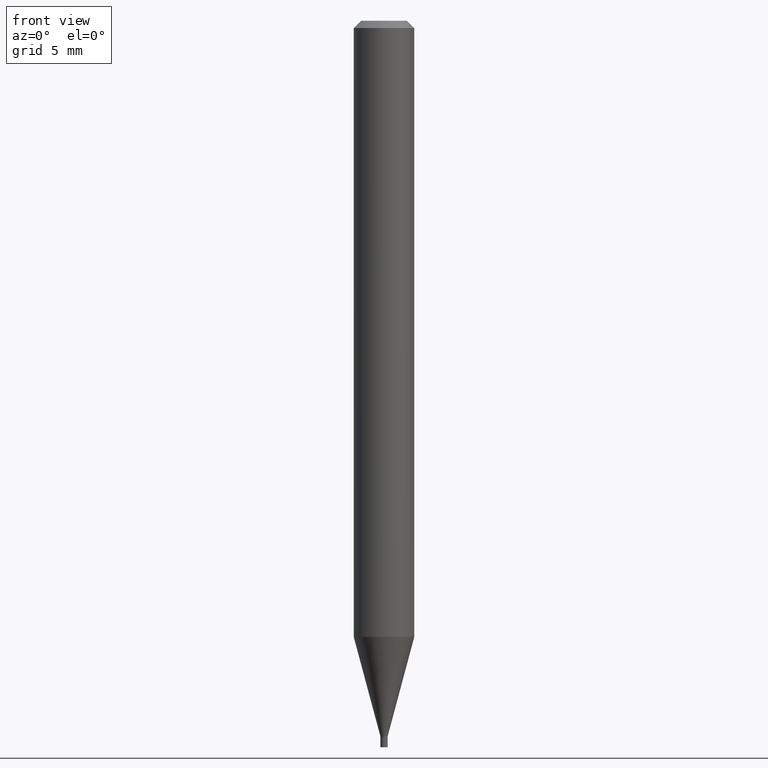
[diagram: clean part render]
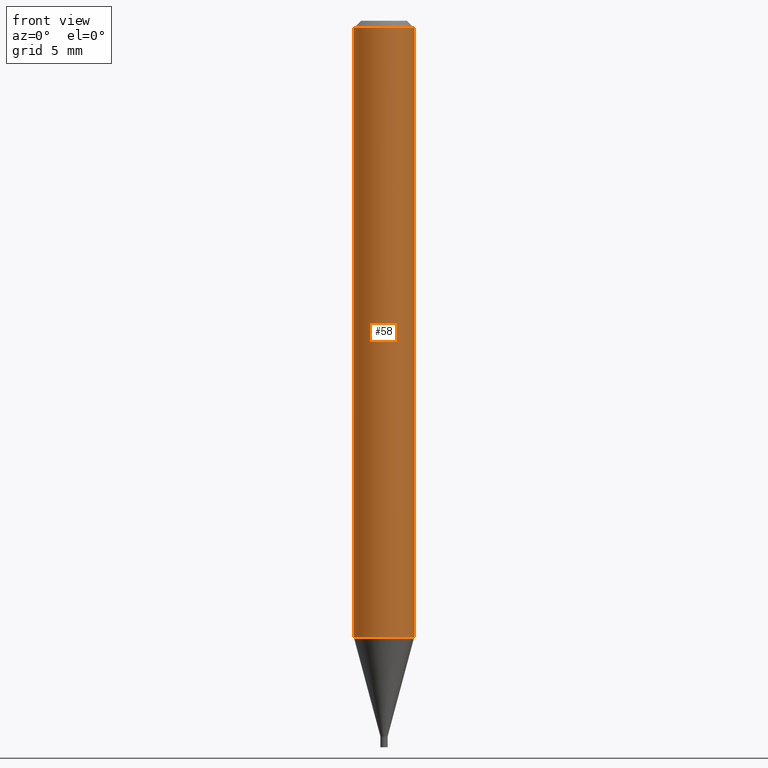
[diagram: same view with one face highlighted and labeled with its STEP entity id]
A machine part, front view. The second image highlights one B-rep face of the part: STEP entity #58.
In plain terms, the highlighted cylindrical surface (edge-blend (fillet) strip) has radius 1.5875 mm, axis along (-0, 0, 1).
Its self-contained STEP definition (entity closure, byte-faithful):
#5 = VECTOR ( 'NONE', #232, 39.37007874015748143 ) ;
#9 = CARTESIAN_POINT ( 'NONE',  ( 0.000000000000000000, 0.000000000000000000, 0.000000000000000000 ) ) ;
#20 = CIRCLE ( 'NONE', #407, 0.06250000000000000000 ) ;
#26 = CARTESIAN_POINT ( 'NONE',  ( 0.06250000000000001388, -4.878427629232878036E-15, -1.272237205583713893 ) ) ;
#30 = ORIENTED_EDGE ( 'NONE', *, *, #331, .F. ) ;
#51 = DIRECTION ( 'NONE',  ( 1.000000000000000000, -6.982962677686266711E-15, 4.876176775795935793E-29 ) ) ;
#58 = ADVANCED_FACE ( 'NONE', ( #119 ), #358, .T. ) ;
#91 = EDGE_CURVE ( 'NONE', #341, #316, #254, .T. ) ;
#92 = LINE ( 'NONE', #128, #5 ) ;
#102 = CIRCLE ( 'NONE', #146, 0.06250000000000000000 ) ;
#105 = CARTESIAN_POINT ( 'NONE',  ( -0.06250000000000000000, -1.803093131130005093E-15, -0.01499999999999999944 ) ) ;
#114 = AXIS2_PLACEMENT_3D ( 'NONE', #9, #400, #51 ) ;
#119 = FACE_OUTER_BOUND ( 'NONE', #238, .T. ) ;
#128 = CARTESIAN_POINT ( 'NONE',  ( 0.06250000000000000000, -4.364351673553916694E-16, 3.047610484872459871E-30 ) ) ;
#133 = DIRECTION ( 'NONE',  ( 1.000000000000000000, -6.982962677686262766E-15, 0.000000000000000000 ) ) ;
#146 = AXIS2_PLACEMENT_3D ( 'NONE', #148, #287, #252 ) ;
#148 = CARTESIAN_POINT ( 'NONE',  ( 3.668203209277705088E-31, -5.237222008264718399E-17, -0.01499999999999999944 ) ) ;
#152 = CARTESIAN_POINT ( 'NONE',  ( -0.06250000000000000000, 4.440892098500626162E-16, -3.074334431409316114E-30 ) ) ;
#178 = CARTESIAN_POINT ( 'NONE',  ( 3.111216400323118995E-29, -4.441992461877487944E-15, -1.272237205583713893 ) ) ;
#187 = CARTESIAN_POINT ( 'NONE',  ( -0.06250000000000001388, -3.997903252027424539E-15, -1.272237205583713893 ) ) ;
#189 = DIRECTION ( 'NONE',  ( -2.445468806185136877E-29, 3.491481338843145188E-15, 1.000000000000000000 ) ) ;
#231 = EDGE_CURVE ( 'NONE', #341, #237, #20, .T. ) ;
#232 = DIRECTION ( 'NONE',  ( -2.445468806185136877E-29, 3.491481338843145188E-15, 1.000000000000000000 ) ) ;
#237 = VERTEX_POINT ( 'NONE', #26 ) ;
#238 = EDGE_LOOP ( 'NONE', ( #396, #356, #434, #30 ) ) ;
#248 = VERTEX_POINT ( 'NONE', #306 ) ;
#252 = DIRECTION ( 'NONE',  ( 1.000000000000000000, -6.982962677686266711E-15, 0.000000000000000000 ) ) ;
#254 = LINE ( 'NONE', #152, #431 ) ;
#287 = DIRECTION ( 'NONE',  ( -2.445468806185136597E-29, 3.491481338843145583E-15, 1.000000000000000000 ) ) ;
#306 = CARTESIAN_POINT ( 'NONE',  ( 0.06250000000000000000, -4.888073874380388472E-16, -0.01499999999999999944 ) ) ;
#316 = VERTEX_POINT ( 'NONE', #105 ) ;
#317 = DIRECTION ( 'NONE',  ( -2.445468806185136597E-29, 3.491481338843145583E-15, 1.000000000000000000 ) ) ;
#331 = EDGE_CURVE ( 'NONE', #316, #248, #102, .T. ) ;
#341 = VERTEX_POINT ( 'NONE', #187 ) ;
#356 = ORIENTED_EDGE ( 'NONE', *, *, #231, .T. ) ;
#358 = CYLINDRICAL_SURFACE ( 'NONE', #114, 0.06250000000000000000 ) ;
#396 = ORIENTED_EDGE ( 'NONE', *, *, #91, .F. ) ;
#400 = DIRECTION ( 'NONE',  ( -2.445468806185136597E-29, 3.491481338843145583E-15, 1.000000000000000000 ) ) ;
#407 = AXIS2_PLACEMENT_3D ( 'NONE', #178, #317, #133 ) ;
#431 = VECTOR ( 'NONE', #189, 39.37007874015748143 ) ;
#434 = ORIENTED_EDGE ( 'NONE', *, *, #437, .T. ) ;
#437 = EDGE_CURVE ( 'NONE', #237, #248, #92, .T. ) ;